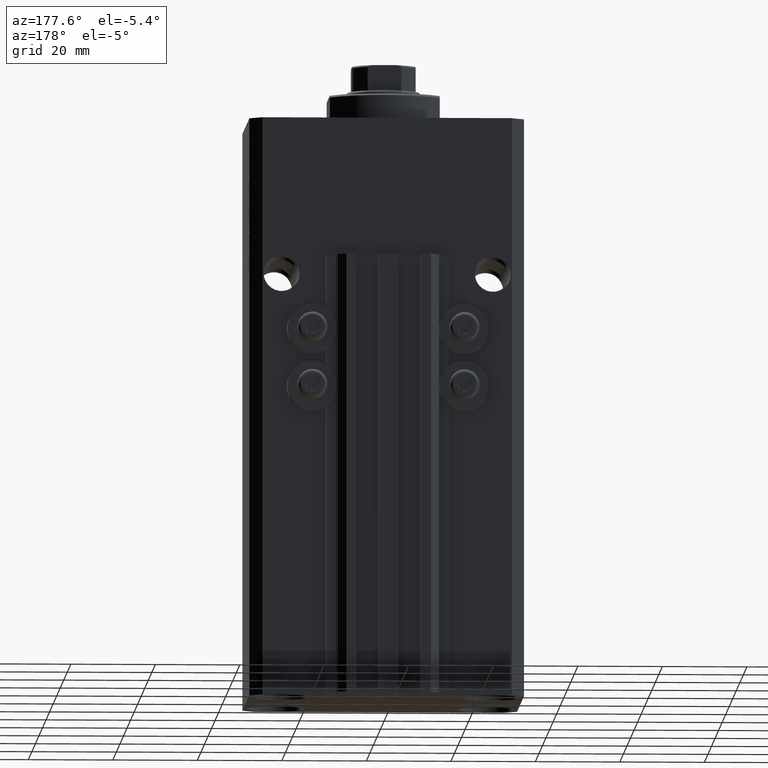
[diagram: clean part render]
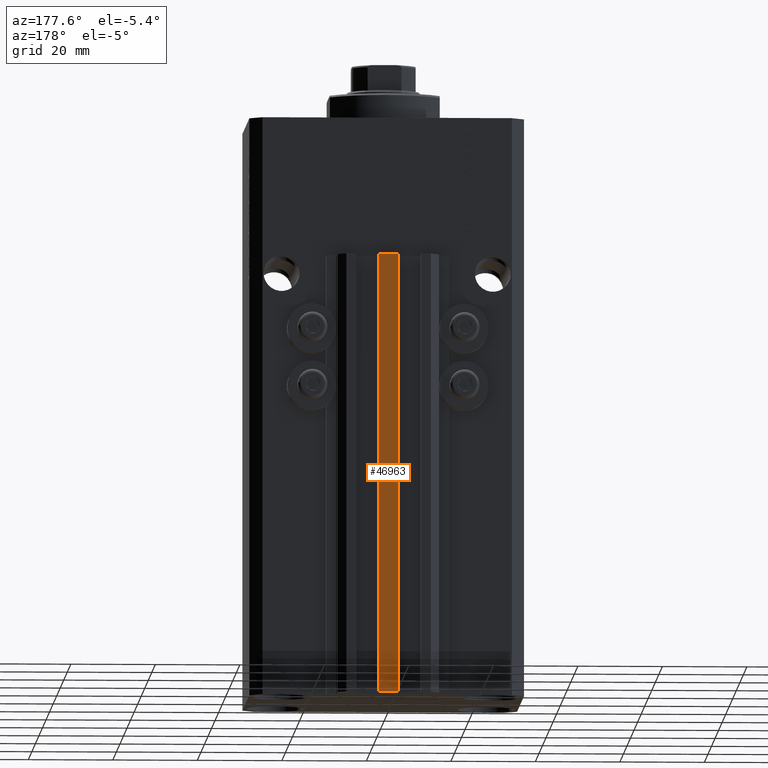
[diagram: same view with one face highlighted and labeled with its STEP entity id]
A machine part, auxiliary view. The second image highlights one B-rep face of the part: STEP entity #46963.
In plain terms, the highlighted planar face has unit normal (0, -1, 0).
Its self-contained STEP definition (entity closure, byte-faithful):
#266 = VECTOR ( 'NONE', #19306, 1000.000000000000000 ) ;
#2216 = EDGE_LOOP ( 'NONE', ( #17149, #25013, #35524, #45002 ) ) ;
#5770 = VERTEX_POINT ( 'NONE', #7288 ) ;
#7288 = CARTESIAN_POINT ( 'NONE',  ( 2.349999999999999645, 30.49999999999949907, -137.0000000000000000 ) ) ;
#8973 = VECTOR ( 'NONE', #27227, 1000.000000000000000 ) ;
#9946 = DIRECTION ( 'NONE',  ( 1.000000000000000000, 0.000000000000000000, 0.000000000000000000 ) ) ;
#12619 = LINE ( 'NONE', #26699, #266 ) ;
#12753 = VERTEX_POINT ( 'NONE', #22145 ) ;
#13116 = DIRECTION ( 'NONE',  ( 0.000000000000000000, -1.000000000000000000, 0.000000000000000000 ) ) ;
#13269 = EDGE_CURVE ( 'NONE', #16620, #46582, #24441, .T. ) ;
#16620 = VERTEX_POINT ( 'NONE', #23560 ) ;
#17149 = ORIENTED_EDGE ( 'NONE', *, *, #29869, .T. ) ;
#17411 = FACE_OUTER_BOUND ( 'NONE', #2216, .T. ) ;
#17798 = EDGE_CURVE ( 'NONE', #5770, #12753, #31043, .T. ) ;
#19306 = DIRECTION ( 'NONE',  ( 1.000000000000000000, 0.000000000000000000, 0.000000000000000000 ) ) ;
#20755 = PLANE ( 'NONE',  #26052 ) ;
#22145 = CARTESIAN_POINT ( 'NONE',  ( 2.349999999999999645, 30.49999999999949907, -33.00000000000000000 ) ) ;
#23560 = CARTESIAN_POINT ( 'NONE',  ( -2.350000000000003197, 30.49999999999949907, -137.0000000000000000 ) ) ;
#24441 = LINE ( 'NONE', #27794, #39410 ) ;
#25013 = ORIENTED_EDGE ( 'NONE', *, *, #17798, .F. ) ;
#25238 = VECTOR ( 'NONE', #9946, 1000.000000000000000 ) ;
#26052 = AXIS2_PLACEMENT_3D ( 'NONE', #38413, #13116, #31251 ) ;
#26699 = CARTESIAN_POINT ( 'NONE',  ( -2.350000000000003197, 30.49999999999949907, -137.0000000000000000 ) ) ;
#27227 = DIRECTION ( 'NONE',  ( 0.000000000000000000, 0.000000000000000000, 1.000000000000000000 ) ) ;
#27794 = CARTESIAN_POINT ( 'NONE',  ( -2.350000000000003197, 30.49999999999949907, -137.0000000000000000 ) ) ;
#28545 = CARTESIAN_POINT ( 'NONE',  ( -2.350000000000003197, 30.49999999999949907, -33.00000000000000000 ) ) ;
#28780 = LINE ( 'NONE', #28545, #25238 ) ;
#29869 = EDGE_CURVE ( 'NONE', #46582, #12753, #28780, .T. ) ;
#31043 = LINE ( 'NONE', #34633, #8973 ) ;
#31251 = DIRECTION ( 'NONE',  ( 0.000000000000000000, -0.000000000000000000, -1.000000000000000000 ) ) ;
#31604 = DIRECTION ( 'NONE',  ( 0.000000000000000000, 0.000000000000000000, 1.000000000000000000 ) ) ;
#34633 = CARTESIAN_POINT ( 'NONE',  ( 2.349999999999999645, 30.49999999999949907, -137.0000000000000000 ) ) ;
#35524 = ORIENTED_EDGE ( 'NONE', *, *, #39542, .F. ) ;
#36348 = CARTESIAN_POINT ( 'NONE',  ( -2.350000000000003197, 30.49999999999949907, -33.00000000000000000 ) ) ;
#38413 = CARTESIAN_POINT ( 'NONE',  ( -2.350000000000003197, 30.49999999999949907, -137.0000000000000000 ) ) ;
#39410 = VECTOR ( 'NONE', #31604, 1000.000000000000000 ) ;
#39542 = EDGE_CURVE ( 'NONE', #16620, #5770, #12619, .T. ) ;
#45002 = ORIENTED_EDGE ( 'NONE', *, *, #13269, .T. ) ;
#46582 = VERTEX_POINT ( 'NONE', #36348 ) ;
#46963 = ADVANCED_FACE ( 'NONE', ( #17411 ), #20755, .F. ) ;